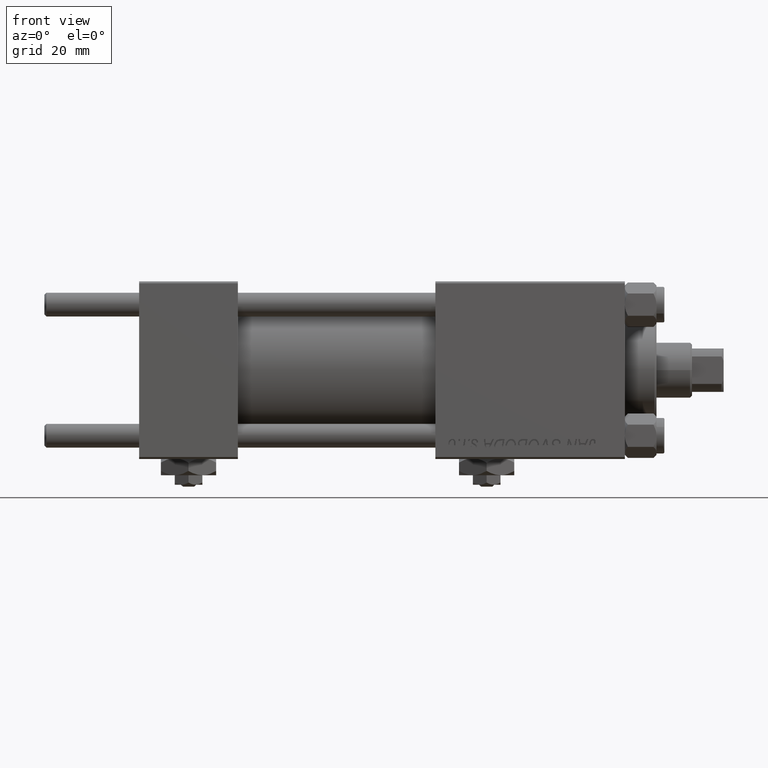
[diagram: clean part render]
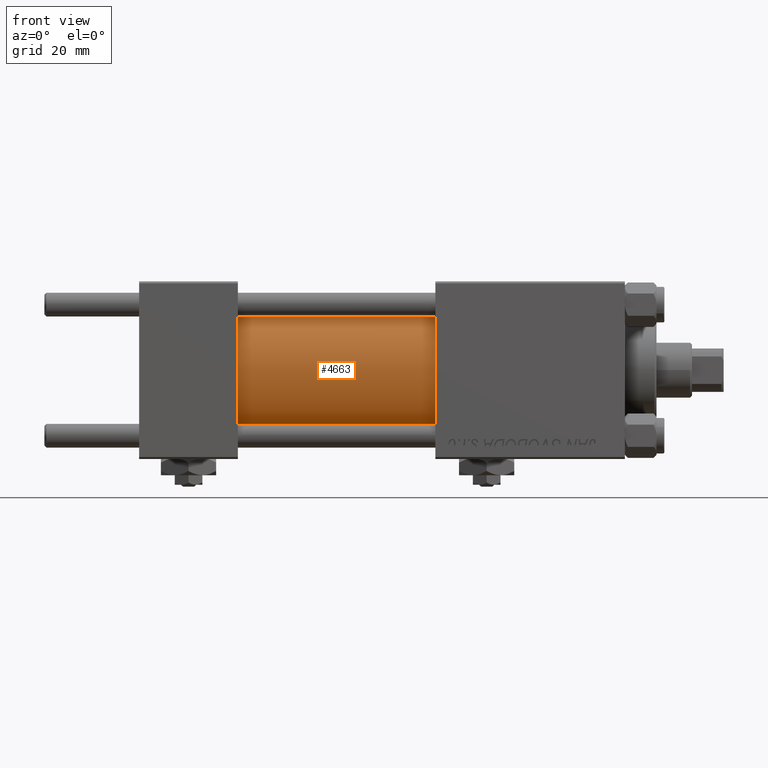
[diagram: same view with one face highlighted and labeled with its STEP entity id]
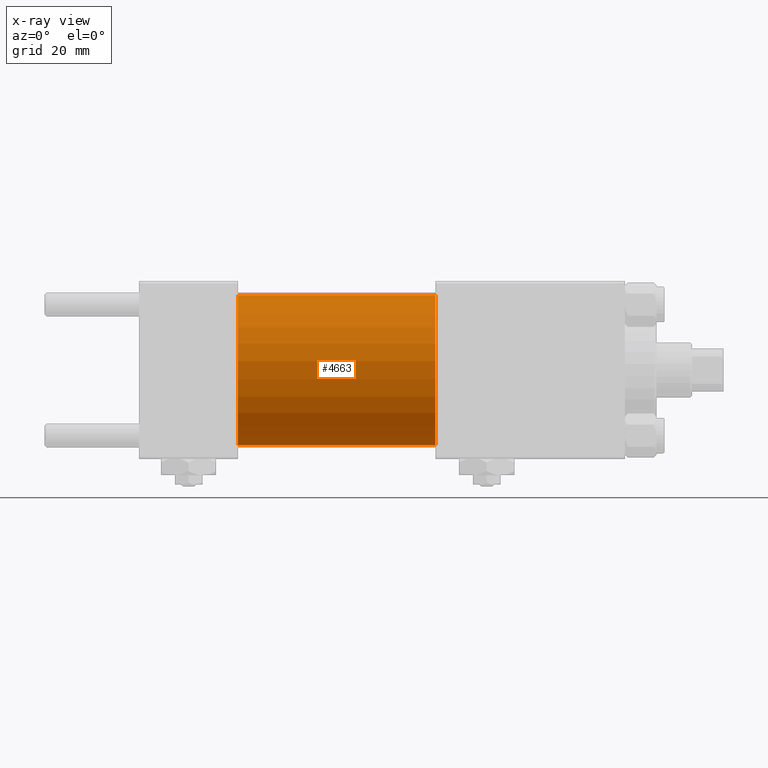
[diagram: x-ray of the same camera — body ghosted, the highlighted face saturated]
A machine part, front view. The second image highlights one B-rep face of the part: STEP entity #4663.
The next image is the same camera in x-ray: the body ghosted, the highlighted face saturated — about 0% of this face is hidden behind the body in this view.
In plain terms, the highlighted cylindrical surface (partial cylindrical patch) has radius 19 mm, axis along (-1, -0, -0).
Its self-contained STEP definition (entity closure, byte-faithful):
#462 = CARTESIAN_POINT ( 'NONE',  ( 75.00000000000001421, 2.326828918379970970E-15, -19.00000000000000000 ) ) ;
#3207 = CARTESIAN_POINT ( 'NONE',  ( 25.00000000000000000, 2.326828918379970970E-15, -19.00000000000000000 ) ) ;
#4041 = FACE_OUTER_BOUND ( 'NONE', #34471, .T. ) ;
#4663 = ADVANCED_FACE ( 'NONE', ( #4041 ), #43931, .T. ) ;
#4948 = CARTESIAN_POINT ( 'NONE',  ( 25.00000000000000000, 0.000000000000000000, 0.000000000000000000 ) ) ;
#5214 = DIRECTION ( 'NONE',  ( 1.000000000000000000, -0.000000000000000000, 0.000000000000000000 ) ) ;
#6311 = AXIS2_PLACEMENT_3D ( 'NONE', #7461, #31098, #7203 ) ;
#7203 = DIRECTION ( 'NONE',  ( 0.000000000000000000, 0.000000000000000000, 1.000000000000000000 ) ) ;
#7461 = CARTESIAN_POINT ( 'NONE',  ( 75.00000000000001421, 0.000000000000000000, 0.000000000000000000 ) ) ;
#8987 = DIRECTION ( 'NONE',  ( 0.000000000000000000, 0.000000000000000000, -1.000000000000000000 ) ) ;
#10444 = DIRECTION ( 'NONE',  ( -1.000000000000000000, -0.000000000000000000, -0.000000000000000000 ) ) ;
#10897 = AXIS2_PLACEMENT_3D ( 'NONE', #4948, #5214, #13331 ) ;
#13331 = DIRECTION ( 'NONE',  ( 0.000000000000000000, 0.000000000000000000, 1.000000000000000000 ) ) ;
#13455 = CARTESIAN_POINT ( 'NONE',  ( 75.00000000000001421, 2.326828918379970970E-15, -19.00000000000000000 ) ) ;
#14629 = CARTESIAN_POINT ( 'NONE',  ( 75.00000000000001421, 0.000000000000000000, 19.00000000000000000 ) ) ;
#15340 = EDGE_CURVE ( 'NONE', #17627, #41258, #33988, .T. ) ;
#16845 = CARTESIAN_POINT ( 'NONE',  ( 75.00000000000001421, 0.000000000000000000, 0.000000000000000000 ) ) ;
#17627 = VERTEX_POINT ( 'NONE', #41086 ) ;
#20401 = ORIENTED_EDGE ( 'NONE', *, *, #36979, .T. ) ;
#21088 = DIRECTION ( 'NONE',  ( -1.000000000000000000, -0.000000000000000000, -0.000000000000000000 ) ) ;
#21797 = VERTEX_POINT ( 'NONE', #3207 ) ;
#22388 = EDGE_CURVE ( 'NONE', #17627, #33726, #50327, .T. ) ;
#26830 = CIRCLE ( 'NONE', #10897, 19.00000000000000000 ) ;
#29334 = ORIENTED_EDGE ( 'NONE', *, *, #22388, .T. ) ;
#31098 = DIRECTION ( 'NONE',  ( -1.000000000000000000, -0.000000000000000000, -0.000000000000000000 ) ) ;
#32029 = EDGE_CURVE ( 'NONE', #41258, #21797, #49403, .T. ) ;
#33389 = DIRECTION ( 'NONE',  ( 1.000000000000000000, 0.000000000000000000, 0.000000000000000000 ) ) ;
#33726 = VERTEX_POINT ( 'NONE', #48968 ) ;
#33988 = CIRCLE ( 'NONE', #41528, 19.00000000000000000 ) ;
#34471 = EDGE_LOOP ( 'NONE', ( #37308, #36098, #29334, #20401 ) ) ;
#36098 = ORIENTED_EDGE ( 'NONE', *, *, #15340, .F. ) ;
#36979 = EDGE_CURVE ( 'NONE', #33726, #21797, #26830, .T. ) ;
#37308 = ORIENTED_EDGE ( 'NONE', *, *, #32029, .F. ) ;
#41086 = CARTESIAN_POINT ( 'NONE',  ( 75.00000000000001421, 0.000000000000000000, 19.00000000000000000 ) ) ;
#41258 = VERTEX_POINT ( 'NONE', #462 ) ;
#41528 = AXIS2_PLACEMENT_3D ( 'NONE', #16845, #33389, #8987 ) ;
#43931 = CYLINDRICAL_SURFACE ( 'NONE', #6311, 19.00000000000000000 ) ;
#48439 = VECTOR ( 'NONE', #10444, 1000.000000000000000 ) ;
#48670 = VECTOR ( 'NONE', #21088, 1000.000000000000000 ) ;
#48968 = CARTESIAN_POINT ( 'NONE',  ( 25.00000000000000000, 0.000000000000000000, 19.00000000000000000 ) ) ;
#49403 = LINE ( 'NONE', #13455, #48670 ) ;
#50327 = LINE ( 'NONE', #14629, #48439 ) ;